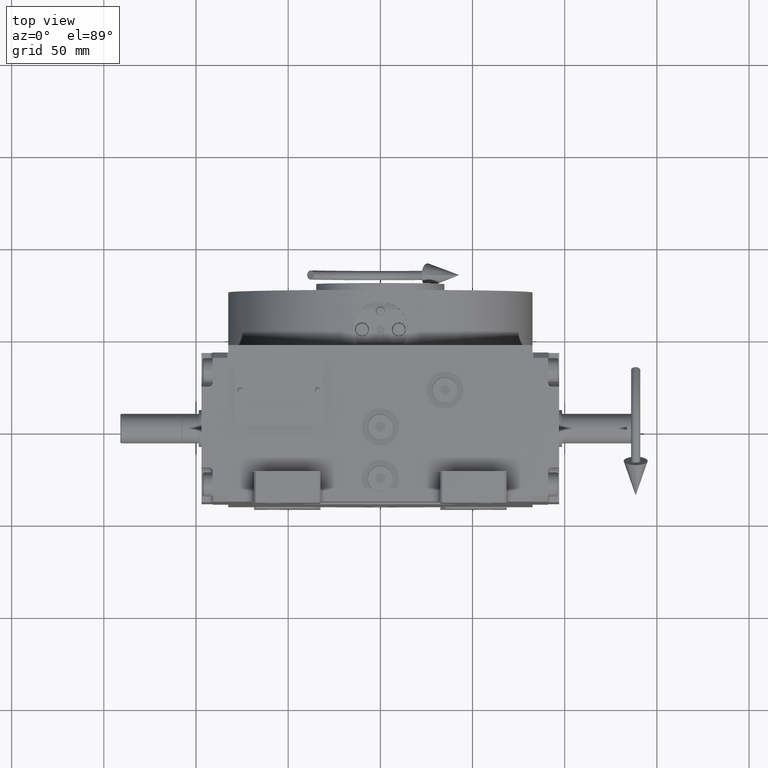
[diagram: clean part render]
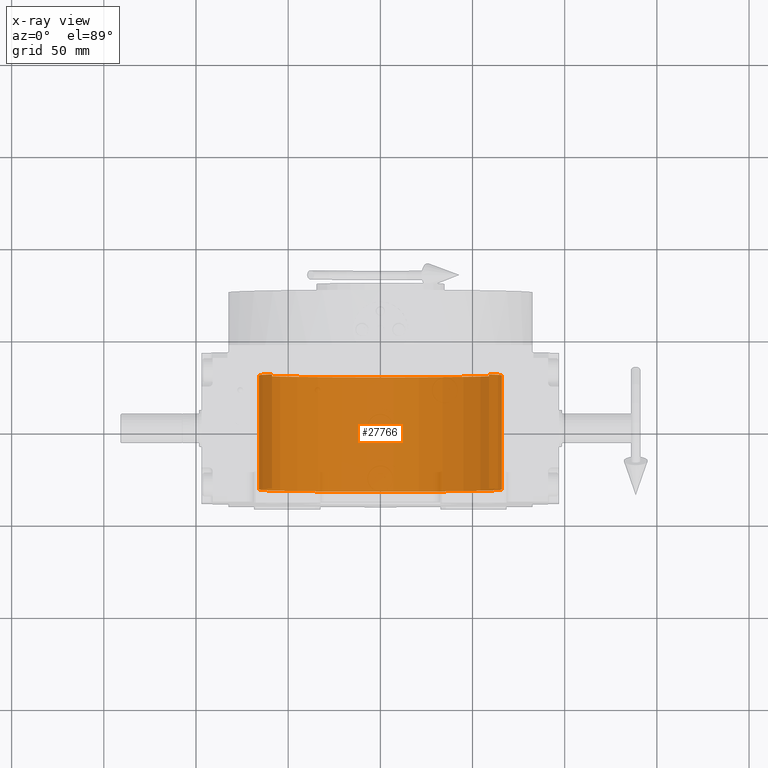
[diagram: x-ray — body ghosted, one internal face saturated and labeled with its STEP entity id]
A machine part, top view, then the same camera in x-ray: the body is ghosted and one INTERNAL B-rep face — a face not visible from any outside direction — is saturated and labeled: STEP entity #27766.
In plain terms, the highlighted cylindrical surface (partial cylindrical patch) has radius 66 mm, axis along (0, 1, 0).
Its self-contained STEP definition (entity closure, byte-faithful):
#530 = EDGE_LOOP ( 'NONE', ( #25192, #19861, #54103, #42047 ) ) ;
#3241 = DIRECTION ( 'NONE',  ( -0.000000000000000000, 1.000000000000000000, -0.000000000000000000 ) ) ;
#3653 = AXIS2_PLACEMENT_3D ( 'NONE', #19677, #39400, #29992 ) ;
#9083 = FACE_OUTER_BOUND ( 'NONE', #530, .T. ) ;
#9711 = EDGE_CURVE ( 'NONE', #42932, #56551, #24274, .T. ) ;
#11516 = CARTESIAN_POINT ( 'NONE',  ( 58.78775382679628336, 98.15000000000000568, 30.00000000000000000 ) ) ;
#13933 = CARTESIAN_POINT ( 'NONE',  ( 0.000000000000000000, 98.15000000000000568, 0.000000000000000000 ) ) ;
#19677 = CARTESIAN_POINT ( 'NONE',  ( 0.000000000000000000, 30.00000000000001421, 0.000000000000000000 ) ) ;
#19861 = ORIENTED_EDGE ( 'NONE', *, *, #45035, .F. ) ;
#22858 = AXIS2_PLACEMENT_3D ( 'NONE', #44635, #34305, #38851 ) ;
#22962 = CYLINDRICAL_SURFACE ( 'NONE', #53260, 66.00000000000000000 ) ;
#23350 = CARTESIAN_POINT ( 'NONE',  ( 58.78775382679628336, -31.99999999999998579, 30.00000000000000000 ) ) ;
#23800 = CARTESIAN_POINT ( 'NONE',  ( -58.78775382679628336, 30.00000000000001421, 30.00000000000000000 ) ) ;
#24274 = CIRCLE ( 'NONE', #3653, 66.00000000000000000 ) ;
#24472 = CARTESIAN_POINT ( 'NONE',  ( -58.78775382679628336, 98.15000000000000568, 30.00000000000000000 ) ) ;
#25114 = DIRECTION ( 'NONE',  ( 0.000000000000000000, -1.000000000000000000, 0.000000000000000000 ) ) ;
#25192 = ORIENTED_EDGE ( 'NONE', *, *, #28315, .T. ) ;
#27234 = VERTEX_POINT ( 'NONE', #23350 ) ;
#27766 = ADVANCED_FACE ( 'NONE', ( #9083 ), #22962, .F. ) ;
#28315 = EDGE_CURVE ( 'NONE', #56551, #57358, #63601, .T. ) ;
#29992 = DIRECTION ( 'NONE',  ( 0.000000000000000000, 0.000000000000000000, 1.000000000000000000 ) ) ;
#31235 = DIRECTION ( 'NONE',  ( -0.000000000000000000, 1.000000000000000000, -0.000000000000000000 ) ) ;
#34305 = DIRECTION ( 'NONE',  ( -0.000000000000000000, 1.000000000000000000, -0.000000000000000000 ) ) ;
#38851 = DIRECTION ( 'NONE',  ( 0.000000000000000000, 0.000000000000000000, 1.000000000000000000 ) ) ;
#39400 = DIRECTION ( 'NONE',  ( -0.000000000000000000, 1.000000000000000000, -0.000000000000000000 ) ) ;
#41196 = CARTESIAN_POINT ( 'NONE',  ( -58.78775382679628336, -31.99999999999998579, 30.00000000000000000 ) ) ;
#42047 = ORIENTED_EDGE ( 'NONE', *, *, #9711, .T. ) ;
#42932 = VERTEX_POINT ( 'NONE', #45758 ) ;
#43686 = DIRECTION ( 'NONE',  ( 0.000000000000000000, 0.000000000000000000, 1.000000000000000000 ) ) ;
#44635 = CARTESIAN_POINT ( 'NONE',  ( 0.000000000000000000, -31.99999999999998579, 0.000000000000000000 ) ) ;
#45035 = EDGE_CURVE ( 'NONE', #27234, #57358, #61226, .T. ) ;
#45758 = CARTESIAN_POINT ( 'NONE',  ( 58.78775382679628336, 30.00000000000001421, 30.00000000000000000 ) ) ;
#46425 = LINE ( 'NONE', #11516, #50507 ) ;
#50507 = VECTOR ( 'NONE', #31235, 1000.000000000000000 ) ;
#53260 = AXIS2_PLACEMENT_3D ( 'NONE', #13933, #3241, #43686 ) ;
#54103 = ORIENTED_EDGE ( 'NONE', *, *, #56931, .T. ) ;
#56551 = VERTEX_POINT ( 'NONE', #23800 ) ;
#56931 = EDGE_CURVE ( 'NONE', #27234, #42932, #46425, .T. ) ;
#57358 = VERTEX_POINT ( 'NONE', #41196 ) ;
#58466 = VECTOR ( 'NONE', #25114, 1000.000000000000000 ) ;
#61226 = CIRCLE ( 'NONE', #22858, 66.00000000000000000 ) ;
#63601 = LINE ( 'NONE', #24472, #58466 ) ;